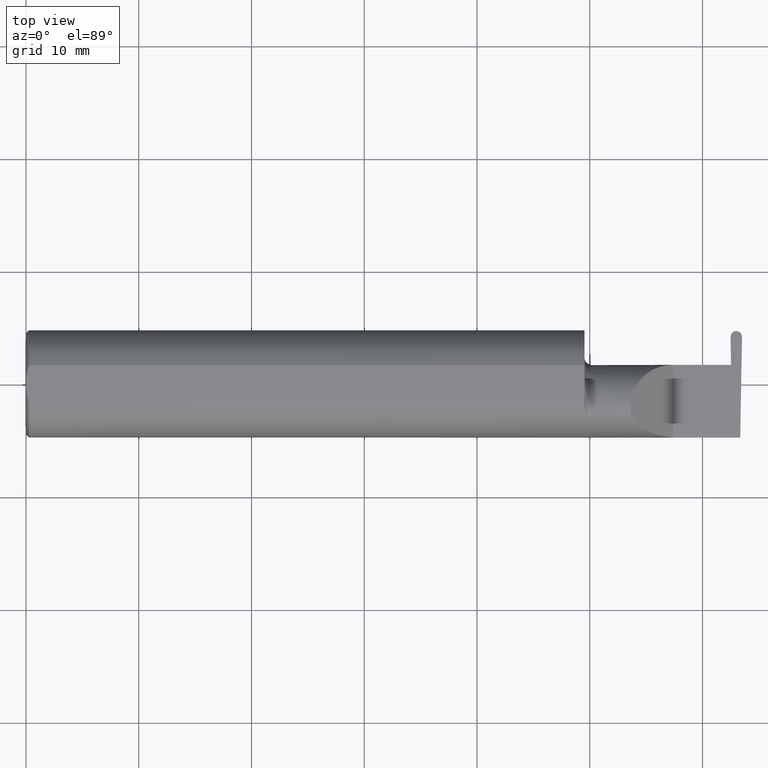
[diagram: clean part render]
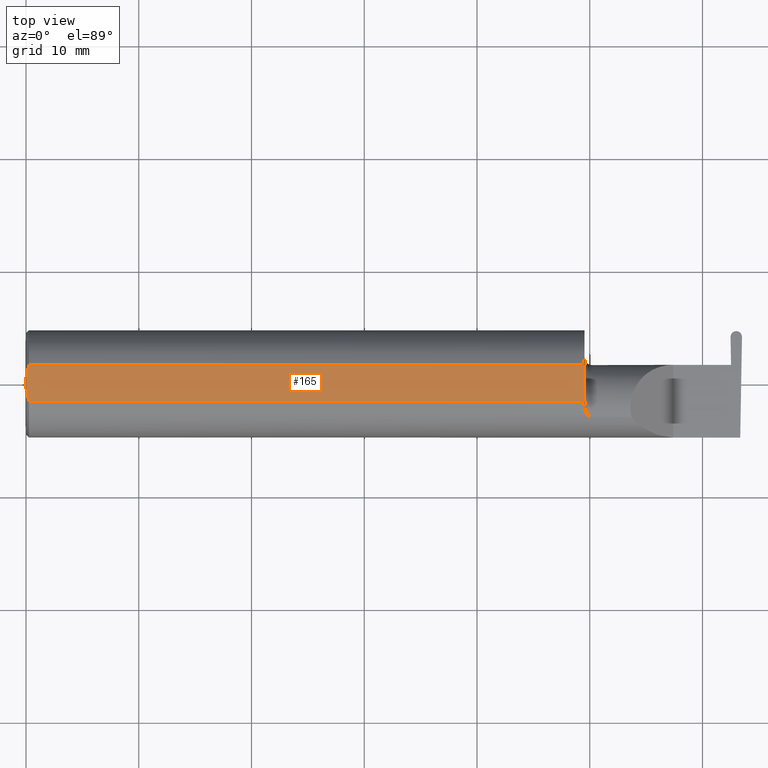
[diagram: same view with one face highlighted and labeled with its STEP entity id]
A machine part, top view. The second image highlights one B-rep face of the part: STEP entity #165.
In plain terms, the highlighted planar face has unit normal (0, 0, 1).
Its self-contained STEP definition (entity closure, byte-faithful):
#24 = ORIENTED_EDGE ( 'NONE', *, *, #264, .F. ) ;
#25 = CARTESIAN_POINT ( 'NONE',  ( 0.009999999999999346217, 0.06325108694718235836, 0.1763499999999999235 ) ) ;
#46 = LINE ( 'NONE', #253, #467 ) ;
#60 = CARTESIAN_POINT ( 'NONE',  ( 1.949999999999999956, -0.06325108694718283020, 0.1763499999999999235 ) ) ;
#74 = DIRECTION ( 'NONE',  ( 1.000000000000000000, 0.000000000000000000, -0.000000000000000000 ) ) ;
#81 = ORIENTED_EDGE ( 'NONE', *, *, #289, .T. ) ;
#90 = CARTESIAN_POINT ( 'NONE',  ( 0.001595548104417217512, -0.03385300050298979679, 0.1763499999999999235 ) ) ;
#102 = CARTESIAN_POINT ( 'NONE',  ( 0.000000000000000000, -0.06325108694718235836, 0.1763499999999999235 ) ) ;
#133 = CARTESIAN_POINT ( 'NONE',  ( 2.876828993045917215, 0.1873499999999998500, 0.1763499999999999235 ) ) ;
#138 = CARTESIAN_POINT ( 'NONE',  ( 0.009999999999999346217, 0.06325108694718235836, 0.1763499999999999235 ) ) ;
#157 = LINE ( 'NONE', #379, #647 ) ;
#165 = ADVANCED_FACE ( 'NONE', ( #233 ), #512, .T. ) ;
#184 = ORIENTED_EDGE ( 'NONE', *, *, #579, .F. ) ;
#186 = CARTESIAN_POINT ( 'NONE',  ( 0.001616639753276218755, 0.03405189565400963680, 0.1763499999999999235 ) ) ;
#230 = DIRECTION ( 'NONE',  ( -0.000000000000000000, 1.000000000000000000, -0.000000000000000000 ) ) ;
#233 = FACE_OUTER_BOUND ( 'NONE', #562, .T. ) ;
#235 = VERTEX_POINT ( 'NONE', #25 ) ;
#248 = B_SPLINE_CURVE_WITH_KNOTS ( 'NONE', 3,
 ( #686, #186, #631, #138 ),
 .UNSPECIFIED., .F., .F.,
 ( 4, 4 ),
 ( 0.01188664626022267051, 0.01304646959483758001 ),
 .UNSPECIFIED. ) ;
#252 = CARTESIAN_POINT ( 'NONE',  ( 0.000000000000000000, 0.01880691362239451242, 0.1763499999999999235 ) ) ;
#253 = CARTESIAN_POINT ( 'NONE',  ( 1.949999999999999956, 0.1873500000000000165, 0.1763499999999999235 ) ) ;
#264 = EDGE_CURVE ( 'NONE', #630, #385, #374, .T. ) ;
#282 = EDGE_CURVE ( 'NONE', #399, #235, #248, .T. ) ;
#283 = LINE ( 'NONE', #498, #285 ) ;
#285 = VECTOR ( 'NONE', #230, 39.37007874015748143 ) ;
#289 = EDGE_CURVE ( 'NONE', #528, #298, #46, .T. ) ;
#295 = EDGE_CURVE ( 'NONE', #630, #528, #703, .T. ) ;
#298 = VERTEX_POINT ( 'NONE', #699 ) ;
#321 = DIRECTION ( 'NONE',  ( 1.000000000000000000, 0.000000000000000000, 0.000000000000000000 ) ) ;
#366 = AXIS2_PLACEMENT_3D ( 'NONE', #133, #522, #74 ) ;
#373 = CARTESIAN_POINT ( 'NONE',  ( 0.000000000000000000, -0.01880691362239451242, 0.1763499999999999235 ) ) ;
#374 = B_SPLINE_CURVE_WITH_KNOTS ( 'NONE', 3,
 ( #696, #587, #90, #591 ),
 .UNSPECIFIED., .F., .F.,
 ( 4, 4 ),
 ( 0.009771445421851449736, 0.01092787937989102981 ),
 .UNSPECIFIED. ) ;
#379 = CARTESIAN_POINT ( 'NONE',  ( 0.000000000000000000, 0.06325108694718235836, 0.1763499999999999235 ) ) ;
#385 = VERTEX_POINT ( 'NONE', #373 ) ;
#386 = ORIENTED_EDGE ( 'NONE', *, *, #295, .T. ) ;
#399 = VERTEX_POINT ( 'NONE', #252 ) ;
#408 = ORIENTED_EDGE ( 'NONE', *, *, #282, .F. ) ;
#410 = EDGE_CURVE ( 'NONE', #298, #235, #157, .T. ) ;
#467 = VECTOR ( 'NONE', #483, 39.37007874015748143 ) ;
#483 = DIRECTION ( 'NONE',  ( 2.008845683092791284E-16, 1.000000000000000000, -0.000000000000000000 ) ) ;
#498 = CARTESIAN_POINT ( 'NONE',  ( 0.000000000000000000, 0.1873499999999998500, 0.1763499999999999235 ) ) ;
#512 = PLANE ( 'NONE',  #366 ) ;
#517 = ORIENTED_EDGE ( 'NONE', *, *, #410, .T. ) ;
#522 = DIRECTION ( 'NONE',  ( 0.000000000000000000, 0.000000000000000000, 1.000000000000000000 ) ) ;
#528 = VERTEX_POINT ( 'NONE', #60 ) ;
#562 = EDGE_LOOP ( 'NONE', ( #386, #81, #517, #408, #184, #24 ) ) ;
#579 = EDGE_CURVE ( 'NONE', #385, #399, #283, .T. ) ;
#587 = CARTESIAN_POINT ( 'NONE',  ( 0.005151108632379595466, -0.04888864921576189376, 0.1763499999999999235 ) ) ;
#591 = CARTESIAN_POINT ( 'NONE',  ( 0.000000000000000000, -0.01880691362239451242, 0.1763499999999999235 ) ) ;
#626 = VECTOR ( 'NONE', #321, 39.37007874015748143 ) ;
#630 = VERTEX_POINT ( 'NONE', #695 ) ;
#631 = CARTESIAN_POINT ( 'NONE',  ( 0.005155213631852355663, 0.04890080824240217866, 0.1763499999999999235 ) ) ;
#644 = DIRECTION ( 'NONE',  ( -1.000000000000000000, -0.000000000000000000, -0.000000000000000000 ) ) ;
#647 = VECTOR ( 'NONE', #644, 39.37007874015748143 ) ;
#686 = CARTESIAN_POINT ( 'NONE',  ( 0.000000000000000000, 0.01880691362239451242, 0.1763499999999999235 ) ) ;
#695 = CARTESIAN_POINT ( 'NONE',  ( 0.009999999999999346217, -0.06325108694718235836, 0.1763499999999999235 ) ) ;
#696 = CARTESIAN_POINT ( 'NONE',  ( 0.009999999999999346217, -0.06325108694718235836, 0.1763499999999999235 ) ) ;
#699 = CARTESIAN_POINT ( 'NONE',  ( 1.949999999999999956, 0.06325108694718235836, 0.1763499999999999235 ) ) ;
#703 = LINE ( 'NONE', #102, #626 ) ;